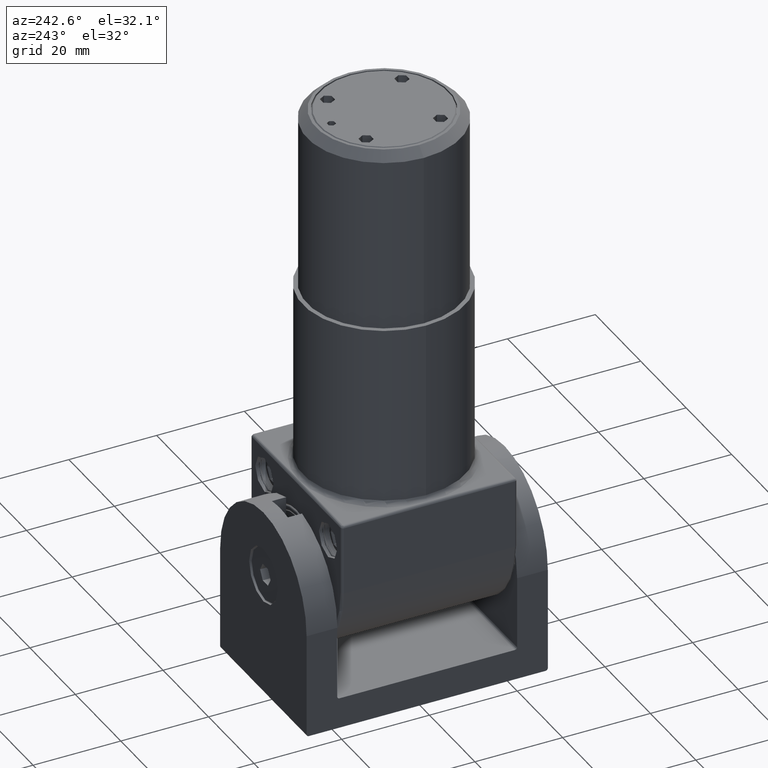
[diagram: clean part render]
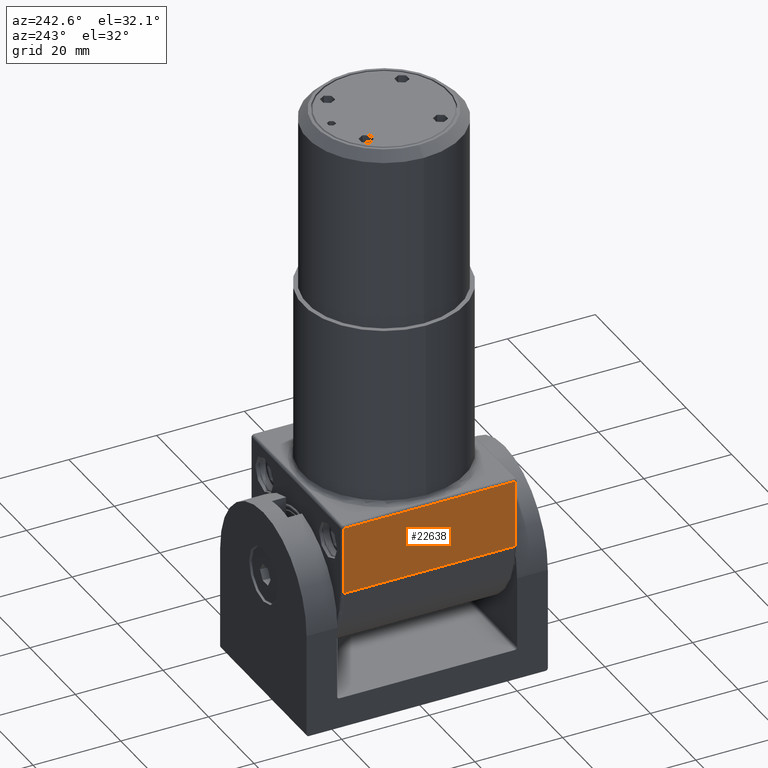
[diagram: same view with one face highlighted and labeled with its STEP entity id]
A machine part, auxiliary view. The second image highlights one B-rep face of the part: STEP entity #22638.
In plain terms, the highlighted planar face has unit normal (1, 0, -0).
Its self-contained STEP definition (entity closure, byte-faithful):
#1507 = FACE_OUTER_BOUND ( 'NONE', #18415, .T. ) ;
#2863 = DIRECTION ( 'NONE',  ( -0.000000000000000000, 1.000000000000000000, -0.000000000000000000 ) ) ;
#4096 = CARTESIAN_POINT ( 'NONE',  ( -20.00000000000000355, 20.00000000000000000, -15.99999999999998934 ) ) ;
#4441 = CARTESIAN_POINT ( 'NONE',  ( -20.00000000000000355, -19.50000000000000000, -15.99999999999999645 ) ) ;
#5012 = VECTOR ( 'NONE', #16910, 1000.000000000000000 ) ;
#5130 = VECTOR ( 'NONE', #2863, 1000.000000000000000 ) ;
#5516 = CARTESIAN_POINT ( 'NONE',  ( -20.00000000000000000, 19.50000000000000000, -0.4999999999999998890 ) ) ;
#7810 = CARTESIAN_POINT ( 'NONE',  ( -20.00000000000000355, 20.00000000000000000, -15.99999999999999645 ) ) ;
#8191 = ORIENTED_EDGE ( 'NONE', *, *, #8971, .T. ) ;
#8296 = CARTESIAN_POINT ( 'NONE',  ( -20.00000000000000355, -19.50000000000000000, -15.99999999999998934 ) ) ;
#8354 = CARTESIAN_POINT ( 'NONE',  ( -20.00000000000000000, -19.50000000000000000, -0.4999999999999998890 ) ) ;
#8971 = EDGE_CURVE ( 'NONE', #12167, #16026, #9568, .T. ) ;
#9568 = LINE ( 'NONE', #13393, #5130 ) ;
#10306 = VERTEX_POINT ( 'NONE', #17178 ) ;
#11683 = VECTOR ( 'NONE', #18709, 1000.000000000000000 ) ;
#12167 = VERTEX_POINT ( 'NONE', #8354 ) ;
#12607 = VERTEX_POINT ( 'NONE', #4441 ) ;
#12787 = DIRECTION ( 'NONE',  ( -2.168404344971010347E-16, 0.000000000000000000, -1.000000000000000000 ) ) ;
#13038 = EDGE_CURVE ( 'NONE', #12607, #12167, #15585, .T. ) ;
#13189 = AXIS2_PLACEMENT_3D ( 'NONE', #4096, #14565, #12787 ) ;
#13393 = CARTESIAN_POINT ( 'NONE',  ( -20.00000000000000000, 20.00000000000000000, -0.5000000000000004441 ) ) ;
#13856 = ORIENTED_EDGE ( 'NONE', *, *, #13038, .T. ) ;
#14437 = DIRECTION ( 'NONE',  ( -2.168404344971010347E-16, -0.000000000000000000, -1.000000000000000000 ) ) ;
#14565 = DIRECTION ( 'NONE',  ( 1.000000000000000000, 0.000000000000000000, -2.168404344971010347E-16 ) ) ;
#14797 = EDGE_CURVE ( 'NONE', #16026, #10306, #21062, .T. ) ;
#15515 = VECTOR ( 'NONE', #14437, 1000.000000000000000 ) ;
#15585 = LINE ( 'NONE', #8296, #11683 ) ;
#16026 = VERTEX_POINT ( 'NONE', #5516 ) ;
#16243 = EDGE_CURVE ( 'NONE', #10306, #12607, #16646, .T. ) ;
#16646 = LINE ( 'NONE', #7810, #5012 ) ;
#16910 = DIRECTION ( 'NONE',  ( -0.000000000000000000, -1.000000000000000000, -0.000000000000000000 ) ) ;
#17178 = CARTESIAN_POINT ( 'NONE',  ( -20.00000000000000355, 19.50000000000000000, -15.99999999999999645 ) ) ;
#17558 = ORIENTED_EDGE ( 'NONE', *, *, #14797, .T. ) ;
#18142 = PLANE ( 'NONE',  #13189 ) ;
#18415 = EDGE_LOOP ( 'NONE', ( #18636, #13856, #8191, #17558 ) ) ;
#18636 = ORIENTED_EDGE ( 'NONE', *, *, #16243, .T. ) ;
#18709 = DIRECTION ( 'NONE',  ( 2.168404344971010347E-16, -0.000000000000000000, 1.000000000000000000 ) ) ;
#19865 = CARTESIAN_POINT ( 'NONE',  ( -20.00000000000000355, 19.50000000000000000, -15.99999999999999645 ) ) ;
#21062 = LINE ( 'NONE', #19865, #15515 ) ;
#22638 = ADVANCED_FACE ( 'NONE', ( #1507 ), #18142, .F. ) ;